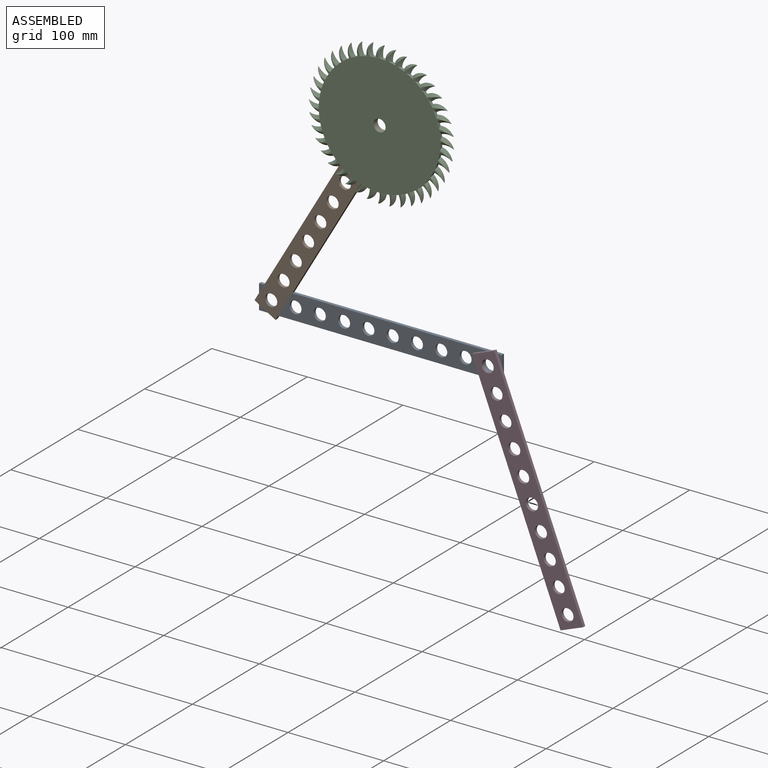
[diagram: assembled view]
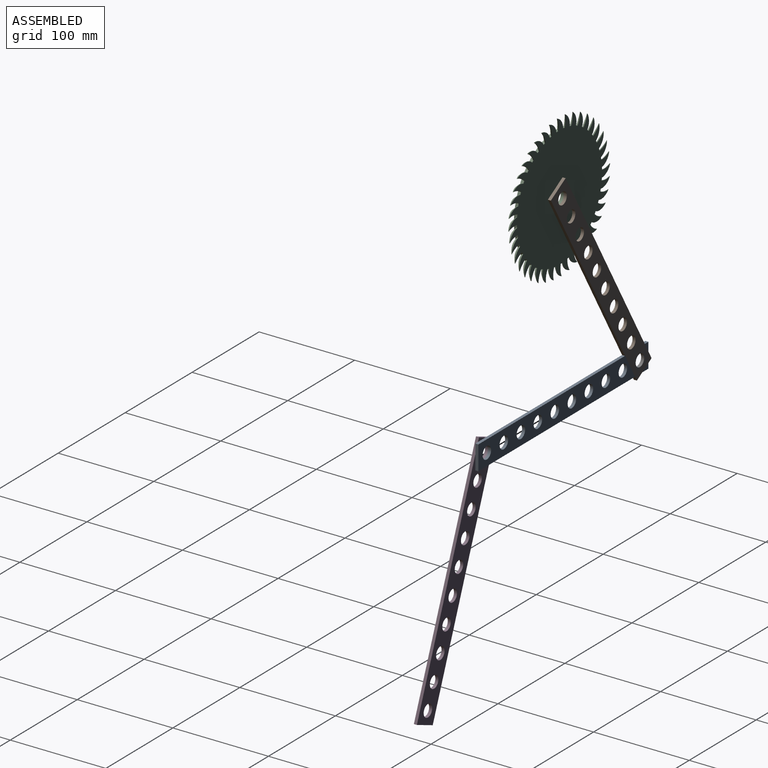
[diagram: assembled view, second angle]
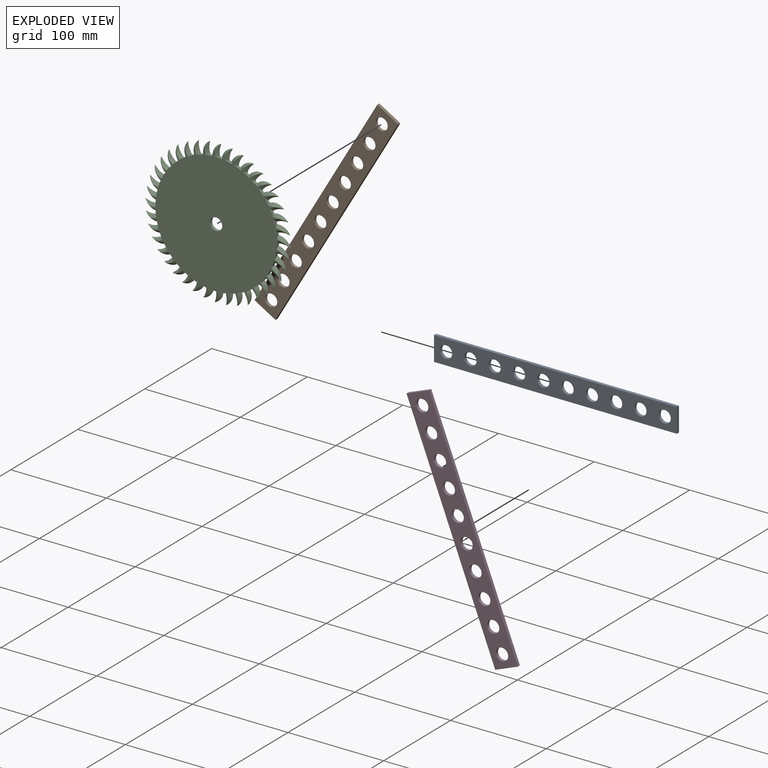
[diagram: exploded view]
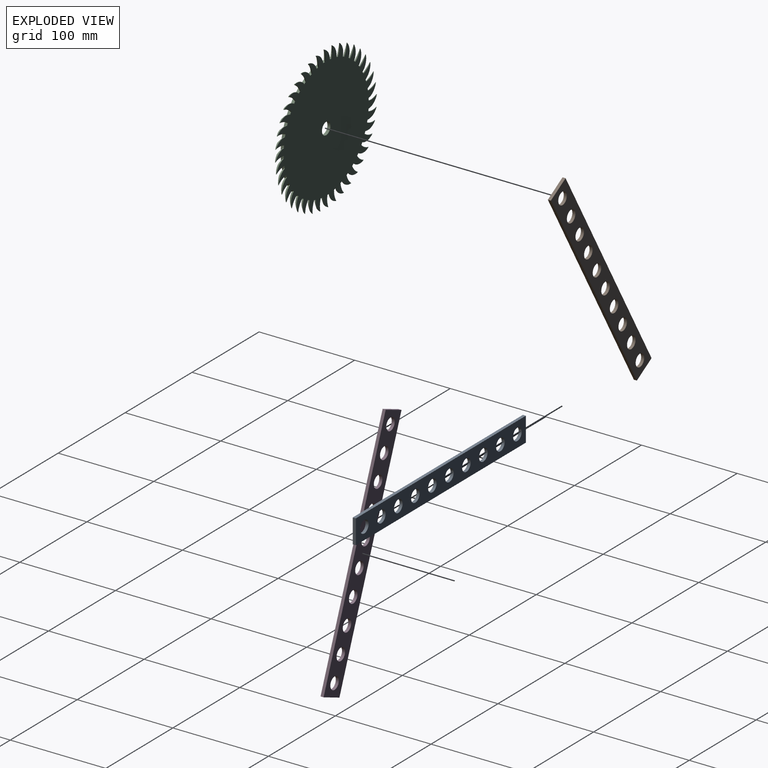
[diagram: exploded view, second angle]
ASSEMBLY  parts=4 mates=3
PART A: 16 faces, bbox 254x3.2x25.4 mm
  f0: plane 25.4x3.18mm, normal (-1,0,0), area 80.6mm2, adj f1,f3,f4,f5
  f1: plane 254x3.18mm, normal (0,0,-1), area 806.5mm2, adj f0,f2,f4,f5
  f2: plane 25.4x3.18mm, normal (1,0,0), area 80.6mm2, adj f1,f3,f4,f5
  f3: plane 254x3.18mm, normal (0,0,1), area 806.5mm2, adj f0,f2,f4,f5
  f4: plane 254x25.4mm, normal (0,-1,0), area 5184.8mm2, adj f0,f1,f2,f3,f6,f7,f8,f9
  f5: plane 254x25.4mm, normal (0,1,0), area 5184.8mm2, adj f0,f1,f2,f3,f6,f7,f8,f9
  f6: cylinder r=6.35mm len=12.7mm, axis (0,-1,0), area 126.7mm2, adj f4,f5
  f7: cylinder r=6.35mm len=12.7mm, axis (0,-1,0), area 126.7mm2, adj f4,f5
  f8: cylinder r=6.35mm len=12.7mm, axis (0,-1,0), area 126.7mm2, adj f4,f5
  f9: cylinder r=6.35mm len=12.7mm, axis (0,-1,0), area 126.7mm2, adj f4,f5
  f10: cylinder r=6.35mm len=12.7mm, axis (0,-1,0), area 126.7mm2, adj f4,f5
  f11: cylinder r=6.35mm len=12.7mm, axis (0,-1,0), area 126.7mm2, adj f4,f5
  f12: cylinder r=6.35mm len=12.7mm, axis (0,-1,0), area 126.7mm2, adj f4,f5
  f13: cylinder r=6.35mm len=12.7mm, axis (0,-1,0), area 126.7mm2, adj f4,f5
  f14: cylinder r=6.35mm len=12.7mm, axis (0,-1,0), area 126.7mm2, adj f4,f5
  f15: cylinder r=6.35mm len=12.7mm, axis (0,-1,0), area 126.7mm2, adj f4,f5
PART B: same geometry as A
PART C: 203 faces, bbox 154x3.2x154 mm
  f0: cylinder r=63.5mm len=7.21mm, axis (0,1,0), area 14.8mm2, adj f40,f41,f44,f46,f199,f201
  f1: cylinder r=63.5mm len=6.66mm, axis (0,1,0), area 14.8mm2, adj f40,f41,f195,f197,f200,f202
  f2: cylinder r=63.5mm len=5.95mm, axis (0,1,0), area 14.8mm2, adj f40,f41,f191,f193,f196,f198
  f3: cylinder r=63.5mm len=5.9mm, axis (0,1,0), area 14.8mm2, adj f40,f41,f187,f189,f192,f194
  f4: cylinder r=63.5mm len=6.62mm, axis (0,1,0), area 14.8mm2, adj f40,f41,f183,f185,f188,f190
  f5: cylinder r=63.5mm len=7.18mm, axis (0,1,0), area 14.8mm2, adj f40,f41,f179,f181,f184,f186
  f6: cylinder r=63.5mm len=7.57mm, axis (0,1,0), area 14.8mm2, adj f40,f41,f175,f177,f180,f182
  f7: cylinder r=63.5mm len=7.76mm, axis (0,1,0), area 14.8mm2, adj f40,f41,f171,f173,f176,f178
  f8: cylinder r=63.5mm len=7.77mm, axis (0,1,0), area 14.8mm2, adj f40,f41,f167,f169,f172,f174
  f9: cylinder r=63.5mm len=7.58mm, axis (0,1,0), area 14.8mm2, adj f40,f41,f163,f165,f168,f170
  f10: cylinder r=63.5mm len=7.21mm, axis (0,1,0), area 14.8mm2, adj f40,f41,f159,f161,f164,f166
  f11: cylinder r=63.5mm len=6.66mm, axis (0,1,0), area 14.8mm2, adj f40,f41,f155,f157,f160,f162
  f12: cylinder r=63.5mm len=5.95mm, axis (0,1,0), area 14.8mm2, adj f40,f41,f151,f153,f156,f158
  f13: cylinder r=63.5mm len=5.9mm, axis (0,1,0), area 14.8mm2, adj f40,f41,f147,f149,f152,f154
  f14: cylinder r=63.5mm len=6.62mm, axis (0,1,0), area 14.8mm2, adj f40,f41,f143,f145,f148,f150
  f15: cylinder r=63.5mm len=7.18mm, axis (0,1,0), area 14.8mm2, adj f40,f41,f139,f141,f144,f146
  f16: cylinder r=63.5mm len=7.57mm, axis (0,1,0), area 14.8mm2, adj f40,f41,f135,f137,f140,f142
  f17: cylinder r=63.5mm len=7.76mm, axis (0,1,0), area 14.8mm2, adj f40,f41,f131,f133,f136,f138
  f18: cylinder r=63.5mm len=7.77mm, axis (0,1,0), area 14.8mm2, adj f40,f41,f127,f129,f132,f134
  f19: cylinder r=63.5mm len=7.58mm, axis (0,1,0), area 14.8mm2, adj f40,f41,f123,f125,f128,f130
  f20: cylinder r=63.5mm len=7.21mm, axis (0,1,0), area 14.8mm2, adj f40,f41,f119,f121,f124,f126
  f21: cylinder r=63.5mm len=6.66mm, axis (0,1,0), area 14.8mm2, adj f40,f41,f115,f117,f120,f122
  f22: cylinder r=63.5mm len=5.95mm, axis (0,1,0), area 14.8mm2, adj f40,f41,f111,f113,f116,f118
  f23: cylinder r=63.5mm len=5.9mm, axis (0,1,0), area 14.8mm2, adj f40,f41,f107,f109,f112,f114
  f24: cylinder r=63.5mm len=6.62mm, axis (0,1,0), area 14.8mm2, adj f40,f41,f103,f105,f108,f110
  f25: cylinder r=63.5mm len=7.18mm, axis (0,1,0), area 14.8mm2, adj f40,f41,f99,f101,f104,f106
  f26: cylinder r=63.5mm len=7.57mm, axis (0,1,0), area 14.8mm2, adj f40,f41,f95,f97,f100,f102
  f27: cylinder r=63.5mm len=7.76mm, axis (0,1,0), area 14.8mm2, adj f40,f41,f91,f93,f96,f98
  f28: cylinder r=63.5mm len=7.77mm, axis (0,1,0), area 14.8mm2, adj f40,f41,f87,f89,f92,f94
  f29: cylinder r=63.5mm len=7.58mm, axis (0,1,0), area 14.8mm2, adj f40,f41,f83,f85,f88,f90
  f30: cylinder r=63.5mm len=7.21mm, axis (0,1,0), area 14.8mm2, adj f40,f41,f79,f81,f84,f86
  f31: cylinder r=63.5mm len=6.66mm, axis (0,1,0), area 14.8mm2, adj f40,f41,f75,f77,f80,f82
  f32: cylinder r=63.5mm len=5.95mm, axis (0,1,0), area 14.8mm2, adj f40,f41,f71,f73,f76,f78
  f33: cylinder r=63.5mm len=5.9mm, axis (0,1,0), area 14.8mm2, adj f40,f41,f67,f69,f72,f74
  f34: cylinder r=63.5mm len=6.62mm, axis (0,1,0), area 14.8mm2, adj f40,f41,f63,f65,f68,f70
  f35: cylinder r=63.5mm len=7.18mm, axis (0,1,0), area 14.8mm2, adj f40,f41,f59,f61,f64,f66
  f36: cylinder r=63.5mm len=7.57mm, axis (0,1,0), area 14.8mm2, adj f40,f41,f55,f57,f60,f62
  f37: cylinder r=63.5mm len=7.76mm, axis (0,1,0), area 14.8mm2, adj f40,f41,f51,f53,f56,f58
  f38: cylinder r=63.5mm len=7.77mm, axis (0,1,0), area 14.8mm2, adj f40,f41,f47,f49,f52,f54
  f39: cylinder r=63.5mm len=7.58mm, axis (0,1,0), area 14.8mm2, adj f40,f41,f43,f45,f48,f50
  f40: plane 138.28x138.28mm, normal (0,-1,0), area 12825.8mm2, adj f0,f1,f2,f3,f4,f5,f6,f7
  f41: plane 151.07x151.07mm, normal (0,1,0), area 14914.2mm2, adj f0,f1,f2,f3,f4,f5,f6,f7
  f42: cylinder r=6.35mm len=12.7mm, axis (0,-1,0), area 126.7mm2, adj f40,f41
  f43: cylinder r=13.61mm len=12.77mm, axis (0,1,0), area 10.3mm2, adj f39,f41,f44,f45,f46
  f44: cone r=19.53mm half-angle=45deg, axis (0,1,0), area 5.6mm2, adj f0,f41,f43,f46
  f45: cone r=11.07mm half-angle=45deg, axis (0,1,0), area 40.2mm2, adj f39,f40,f43,f46
  f46: cone r=16.99mm half-angle=45deg, axis (0,-1,0), area 39.3mm2, adj f0,f40,f43,f44,f45
  f47: cylinder r=13.61mm len=11.23mm, axis (0,1,0), area 10.3mm2, adj f38,f41,f48,f49,f50
  f48: cone r=19.53mm half-angle=45deg, axis (0,1,0), area 5.6mm2, adj f39,f41,f47,f50
  f49: cone r=11.07mm half-angle=45deg, axis (0,1,0), area 40.2mm2, adj f38,f40,f47,f50
  f50: cone r=16.99mm half-angle=45deg, axis (0,-1,0), area 39.3mm2, adj f39,f40,f47,f48,f49
  f51: cylinder r=13.61mm len=12.3mm, axis (0,1,0), area 10.3mm2, adj f37,f41,f52,f53,f54
  f52: cone r=19.53mm half-angle=45deg, axis (0,1,0), area 5.6mm2, adj f38,f41,f51,f54
  f53: cone r=11.07mm half-angle=45deg, axis (0,1,0), area 40.2mm2, adj f37,f40,f51,f54
  f54: cone r=16.99mm half-angle=45deg, axis (0,-1,0), area 39.3mm2, adj f38,f40,f51,f52,f53
  f55: cylinder r=13.61mm len=13.63mm, axis (0,1,0), area 10.3mm2, adj f36,f41,f56,f57,f58
  f56: cone r=19.53mm half-angle=45deg, axis (0,1,0), area 5.6mm2, adj f37,f41,f55,f58
  f57: cone r=11.07mm half-angle=45deg, axis (0,1,0), area 40.2mm2, adj f36,f40,f55,f58
  f58: cone r=16.99mm half-angle=45deg, axis (0,-1,0), area 39.3mm2, adj f37,f40,f55,f56,f57
  f59: cylinder r=13.61mm len=14.61mm, axis (0,1,0), area 10.3mm2, adj f35,f41,f60,f61,f62
  f60: cone r=19.53mm half-angle=45deg, axis (0,1,0), area 5.6mm2, adj f36,f41,f59,f62
  f61: cone r=11.07mm half-angle=45deg, axis (0,1,0), area 40.2mm2, adj f35,f40,f59,f62
  f62: cone r=16.99mm half-angle=45deg, axis (0,-1,0), area 39.3mm2, adj f36,f40,f59,f60,f61
  f63: cylinder r=13.61mm len=15.24mm, axis (0,1,0), area 10.3mm2, adj f34,f41,f64,f65,f66
  f64: cone r=19.53mm half-angle=45deg, axis (0,1,0), area 5.6mm2, adj f35,f41,f63,f66
  f65: cone r=11.07mm half-angle=45deg, axis (0,1,0), area 40.2mm2, adj f34,f40,f63,f66
  f66: cone r=16.99mm half-angle=45deg, axis (0,-1,0), area 39.3mm2, adj f35,f40,f63,f64,f65
  f67: cylinder r=13.61mm len=15.49mm, axis (0,1,0), area 10.3mm2, adj f33,f41,f68,f69,f70
  f68: cone r=19.53mm half-angle=45deg, axis (0,1,0), area 5.6mm2, adj f34,f41,f67,f70
  f69: cone r=11.07mm half-angle=45deg, axis (0,1,0), area 40.2mm2, adj f33,f40,f67,f70
  f70: cone r=16.99mm half-angle=45deg, axis (0,-1,0), area 39.3mm2, adj f34,f40,f67,f68,f69
  f71: cylinder r=13.61mm len=15.36mm, axis (0,1,0), area 10.3mm2, adj f32,f41,f72,f73,f74
  f72: cone r=19.53mm half-angle=45deg, axis (0,1,0), area 5.6mm2, adj f33,f41,f71,f74
  f73: cone r=11.07mm half-angle=45deg, axis (0,1,0), area 40.2mm2, adj f32,f40,f71,f74
  f74: cone r=16.99mm half-angle=45deg, axis (0,-1,0), area 39.3mm2, adj f33,f40,f71,f72,f73
  f75: cylinder r=13.61mm len=14.86mm, axis (0,1,0), area 10.3mm2, adj f31,f41,f76,f77,f78
  f76: cone r=19.53mm half-angle=45deg, axis (0,1,0), area 5.6mm2, adj f32,f41,f75,f78
  f77: cone r=11.07mm half-angle=45deg, axis (0,1,0), area 40.2mm2, adj f31,f40,f75,f78
  f78: cone r=16.99mm half-angle=45deg, axis (0,-1,0), area 39.3mm2, adj f32,f40,f75,f76,f77
  f79: cylinder r=13.61mm len=13.98mm, axis (0,1,0), area 10.3mm2, adj f30,f41,f80,f81,f82
  f80: cone r=19.53mm half-angle=45deg, axis (0,1,0), area 5.6mm2, adj f31,f41,f79,f82
  f81: cone r=11.07mm half-angle=45deg, axis (0,1,0), area 40.2mm2, adj f30,f40,f79,f82
  f82: cone r=16.99mm half-angle=45deg, axis (0,-1,0), area 39.3mm2, adj f31,f40,f79,f80,f81
  f83: cylinder r=13.61mm len=12.77mm, axis (0,1,0), area 10.3mm2, adj f29,f41,f84,f85,f86
  f84: cone r=19.53mm half-angle=45deg, axis (0,1,0), area 5.6mm2, adj f30,f41,f83,f86
  f85: cone r=11.07mm half-angle=45deg, axis (0,1,0), area 40.2mm2, adj f29,f40,f83,f86
  f86: cone r=16.99mm half-angle=45deg, axis (0,-1,0), area 39.3mm2, adj f30,f40,f83,f84,f85
  f87: cylinder r=13.61mm len=11.23mm, axis (0,1,0), area 10.3mm2, adj f28,f41,f88,f89,f90
  f88: cone r=19.53mm half-angle=45deg, axis (0,1,0), area 5.6mm2, adj f29,f41,f87,f90
  f89: cone r=11.07mm half-angle=45deg, axis (0,1,0), area 40.2mm2, adj f28,f40,f87,f90
  f90: cone r=16.99mm half-angle=45deg, axis (0,-1,0), area 39.3mm2, adj f29,f40,f87,f88,f89
  f91: cylinder r=13.61mm len=12.3mm, axis (0,1,0), area 10.3mm2, adj f27,f41,f92,f93,f94
  f92: cone r=19.53mm half-angle=45deg, axis (0,1,0), area 5.6mm2, adj f28,f41,f91,f94
  f93: cone r=11.07mm half-angle=45deg, axis (0,1,0), area 40.2mm2, adj f27,f40,f91,f94
  f94: cone r=16.99mm half-angle=45deg, axis (0,-1,0), area 39.3mm2, adj f28,f40,f91,f92,f93
  f95: cylinder r=13.61mm len=13.63mm, axis (0,1,0), area 10.3mm2, adj f26,f41,f96,f97,f98
  f96: cone r=19.53mm half-angle=45deg, axis (0,1,0), area 5.6mm2, adj f27,f41,f95,f98
  f97: cone r=11.07mm half-angle=45deg, axis (0,1,0), area 40.2mm2, adj f26,f40,f95,f98
  f98: cone r=16.99mm half-angle=45deg, axis (0,-1,0), area 39.3mm2, adj f27,f40,f95,f96,f97
  f99: cylinder r=13.61mm len=14.61mm, axis (0,1,0), area 10.3mm2, adj f25,f41,f100,f101,f102
  f100: cone r=19.53mm half-angle=45deg, axis (0,1,0), area 5.6mm2, adj f26,f41,f99,f102
  f101: cone r=11.07mm half-angle=45deg, axis (0,1,0), area 40.2mm2, adj f25,f40,f99,f102
  f102: cone r=16.99mm half-angle=45deg, axis (0,-1,0), area 39.3mm2, adj f26,f40,f99,f100,f101
  f103: cylinder r=13.61mm len=15.24mm, axis (0,1,0), area 10.3mm2, adj f24,f41,f104,f105,f106
  f104: cone r=19.53mm half-angle=45deg, axis (0,1,0), area 5.6mm2, adj f25,f41,f103,f106
  f105: cone r=11.07mm half-angle=45deg, axis (0,1,0), area 40.2mm2, adj f24,f40,f103,f106
  f106: cone r=16.99mm half-angle=45deg, axis (0,-1,0), area 39.3mm2, adj f25,f40,f103,f104,f105
  f107: cylinder r=13.61mm len=15.49mm, axis (0,1,0), area 10.3mm2, adj f23,f41,f108,f109,f110
  f108: cone r=19.53mm half-angle=45deg, axis (0,1,0), area 5.6mm2, adj f24,f41,f107,f110
  f109: cone r=11.07mm half-angle=45deg, axis (0,1,0), area 40.2mm2, adj f23,f40,f107,f110
  f110: cone r=16.99mm half-angle=45deg, axis (0,-1,0), area 39.3mm2, adj f24,f40,f107,f108,f109
  f111: cylinder r=13.61mm len=15.36mm, axis (0,1,0), area 10.3mm2, adj f22,f41,f112,f113,f114
  f112: cone r=19.53mm half-angle=45deg, axis (0,1,0), area 5.6mm2, adj f23,f41,f111,f114
  f113: cone r=11.07mm half-angle=45deg, axis (0,1,0), area 40.2mm2, adj f22,f40,f111,f114
  f114: cone r=16.99mm half-angle=45deg, axis (0,-1,0), area 39.3mm2, adj f23,f40,f111,f112,f113
  f115: cylinder r=13.61mm len=14.86mm, axis (0,1,0), area 10.3mm2, adj f21,f41,f116,f117,f118
  f116: cone r=19.53mm half-angle=45deg, axis (0,1,0), area 5.6mm2, adj f22,f41,f115,f118
  f117: cone r=11.07mm half-angle=45deg, axis (0,1,0), area 40.2mm2, adj f21,f40,f115,f118
  f118: cone r=16.99mm half-angle=45deg, axis (0,-1,0), area 39.3mm2, adj f22,f40,f115,f116,f117
  f119: cylinder r=13.61mm len=13.98mm, axis (0,1,0), area 10.3mm2, adj f20,f41,f120,f121,f122
  f120: cone r=19.53mm half-angle=45deg, axis (0,1,0), area 5.6mm2, adj f21,f41,f119,f122
  f121: cone r=11.07mm half-angle=45deg, axis (0,1,0), area 40.2mm2, adj f20,f40,f119,f122
  f122: cone r=16.99mm half-angle=45deg, axis (0,-1,0), area 39.3mm2, adj f21,f40,f119,f120,f121
  f123: cylinder r=13.61mm len=12.77mm, axis (0,1,0), area 10.3mm2, adj f19,f41,f124,f125,f126
  f124: cone r=19.53mm half-angle=45deg, axis (0,1,0), area 5.6mm2, adj f20,f41,f123,f126
  f125: cone r=11.07mm half-angle=45deg, axis (0,1,0), area 40.2mm2, adj f19,f40,f123,f126
  f126: cone r=16.99mm half-angle=45deg, axis (0,-1,0), area 39.3mm2, adj f20,f40,f123,f124,f125
  f127: cylinder r=13.61mm len=11.23mm, axis (0,1,0), area 10.3mm2, adj f18,f41,f128,f129,f130
  f128: cone r=19.53mm half-angle=45deg, axis (0,1,0), area 5.6mm2, adj f19,f41,f127,f130
  f129: cone r=11.07mm half-angle=45deg, axis (0,1,0), area 40.2mm2, adj f18,f40,f127,f130
  f130: cone r=16.99mm half-angle=45deg, axis (0,-1,0), area 39.3mm2, adj f19,f40,f127,f128,f129
  f131: cylinder r=13.61mm len=12.3mm, axis (0,1,0), area 10.3mm2, adj f17,f41,f132,f133,f134
  f132: cone r=19.53mm half-angle=45deg, axis (0,1,0), area 5.6mm2, adj f18,f41,f131,f134
  f133: cone r=11.07mm half-angle=45deg, axis (0,1,0), area 40.2mm2, adj f17,f40,f131,f134
  f134: cone r=16.99mm half-angle=45deg, axis (0,-1,0), area 39.3mm2, adj f18,f40,f131,f132,f133
  f135: cylinder r=13.61mm len=13.63mm, axis (0,1,0), area 10.3mm2, adj f16,f41,f136,f137,f138
  f136: cone r=19.53mm half-angle=45deg, axis (0,1,0), area 5.6mm2, adj f17,f41,f135,f138
  f137: cone r=11.07mm half-angle=45deg, axis (0,1,0), area 40.2mm2, adj f16,f40,f135,f138
  f138: cone r=16.99mm half-angle=45deg, axis (0,-1,0), area 39.3mm2, adj f17,f40,f135,f136,f137
  f139: cylinder r=13.61mm len=14.61mm, axis (0,1,0), area 10.3mm2, adj f15,f41,f140,f141,f142
  f140: cone r=19.53mm half-angle=45deg, axis (0,1,0), area 5.6mm2, adj f16,f41,f139,f142
  f141: cone r=11.07mm half-angle=45deg, axis (0,1,0), area 40.2mm2, adj f15,f40,f139,f142
  f142: cone r=16.99mm half-angle=45deg, axis (0,-1,0), area 39.3mm2, adj f16,f40,f139,f140,f141
  f143: cylinder r=13.61mm len=15.24mm, axis (0,1,0), area 10.3mm2, adj f14,f41,f144,f145,f146
  f144: cone r=19.53mm half-angle=45deg, axis (0,1,0), area 5.6mm2, adj f15,f41,f143,f146
  f145: cone r=11.07mm half-angle=45deg, axis (0,1,0), area 40.2mm2, adj f14,f40,f143,f146
  f146: cone r=16.99mm half-angle=45deg, axis (0,-1,0), area 39.3mm2, adj f15,f40,f143,f144,f145
  f147: cylinder r=13.61mm len=15.49mm, axis (0,1,0), area 10.3mm2, adj f13,f41,f148,f149,f150
  f148: cone r=19.53mm half-angle=45deg, axis (0,1,0), area 5.6mm2, adj f14,f41,f147,f150
  f149: cone r=11.07mm half-angle=45deg, axis (0,1,0), area 40.2mm2, adj f13,f40,f147,f150
  f150: cone r=16.99mm half-angle=45deg, axis (0,-1,0), area 39.3mm2, adj f14,f40,f147,f148,f149
  f151: cylinder r=13.61mm len=15.36mm, axis (0,1,0), area 10.3mm2, adj f12,f41,f152,f153,f154
  f152: cone r=19.53mm half-angle=45deg, axis (0,1,0), area 5.6mm2, adj f13,f41,f151,f154
  f153: cone r=11.07mm half-angle=45deg, axis (0,1,0), area 40.2mm2, adj f12,f40,f151,f154
  f154: cone r=16.99mm half-angle=45deg, axis (0,-1,0), area 39.3mm2, adj f13,f40,f151,f152,f153
  f155: cylinder r=13.61mm len=14.86mm, axis (0,1,0), area 10.3mm2, adj f11,f41,f156,f157,f158
  f156: cone r=19.53mm half-angle=45deg, axis (0,1,0), area 5.6mm2, adj f12,f41,f155,f158
  f157: cone r=11.07mm half-angle=45deg, axis (0,1,0), area 40.2mm2, adj f11,f40,f155,f158
  f158: cone r=16.99mm half-angle=45deg, axis (0,-1,0), area 39.3mm2, adj f12,f40,f155,f156,f157
  f159: cylinder r=13.61mm len=13.98mm, axis (0,1,0), area 10.3mm2, adj f10,f41,f160,f161,f162
  f160: cone r=19.53mm half-angle=45deg, axis (0,1,0), area 5.6mm2, adj f11,f41,f159,f162
  f161: cone r=11.07mm half-angle=45deg, axis (0,1,0), area 40.2mm2, adj f10,f40,f159,f162
  f162: cone r=16.99mm half-angle=45deg, axis (0,-1,0), area 39.3mm2, adj f11,f40,f159,f160,f161
  f163: cylinder r=13.61mm len=12.77mm, axis (0,1,0), area 10.3mm2, adj f9,f41,f164,f165,f166
  f164: cone r=19.53mm half-angle=45deg, axis (0,1,0), area 5.6mm2, adj f10,f41,f163,f166
  f165: cone r=11.07mm half-angle=45deg, axis (0,1,0), area 40.2mm2, adj f9,f40,f163,f166
  f166: cone r=16.99mm half-angle=45deg, axis (0,-1,0), area 39.3mm2, adj f10,f40,f163,f164,f165
  f167: cylinder r=13.61mm len=11.23mm, axis (0,1,0), area 10.3mm2, adj f8,f41,f168,f169,f170
  f168: cone r=19.53mm half-angle=45deg, axis (0,1,0), area 5.6mm2, adj f9,f41,f167,f170
  f169: cone r=11.07mm half-angle=45deg, axis (0,1,0), area 40.2mm2, adj f8,f40,f167,f170
  f170: cone r=16.99mm half-angle=45deg, axis (0,-1,0), area 39.3mm2, adj f9,f40,f167,f168,f169
  f171: cylinder r=13.61mm len=12.3mm, axis (0,1,0), area 10.3mm2, adj f7,f41,f172,f173,f174
  f172: cone r=19.53mm half-angle=45deg, axis (0,1,0), area 5.6mm2, adj f8,f41,f171,f174
  f173: cone r=11.07mm half-angle=45deg, axis (0,1,0), area 40.2mm2, adj f7,f40,f171,f174
  f174: cone r=16.99mm half-angle=45deg, axis (0,-1,0), area 39.3mm2, adj f8,f40,f171,f172,f173
  f175: cylinder r=13.61mm len=13.63mm, axis (0,1,0), area 10.3mm2, adj f6,f41,f176,f177,f178
  f176: cone r=19.53mm half-angle=45deg, axis (0,1,0), area 5.6mm2, adj f7,f41,f175,f178
  f177: cone r=11.07mm half-angle=45deg, axis (0,1,0), area 40.2mm2, adj f6,f40,f175,f178
  f178: cone r=16.99mm half-angle=45deg, axis (0,-1,0), area 39.3mm2, adj f7,f40,f175,f176,f177
  f179: cylinder r=13.61mm len=14.61mm, axis (0,1,0), area 10.3mm2, adj f5,f41,f180,f181,f182
  f180: cone r=19.53mm half-angle=45deg, axis (0,1,0), area 5.6mm2, adj f6,f41,f179,f182
  f181: cone r=11.07mm half-angle=45deg, axis (0,1,0), area 40.2mm2, adj f5,f40,f179,f182
  f182: cone r=16.99mm half-angle=45deg, axis (0,-1,0), area 39.3mm2, adj f6,f40,f179,f180,f181
  f183: cylinder r=13.61mm len=15.24mm, axis (0,1,0), area 10.3mm2, adj f4,f41,f184,f185,f186
  f184: cone r=19.53mm half-angle=45deg, axis (0,1,0), area 5.6mm2, adj f5,f41,f183,f186
  f185: cone r=11.07mm half-angle=45deg, axis (0,1,0), area 40.2mm2, adj f4,f40,f183,f186
  f186: cone r=16.99mm half-angle=45deg, axis (0,-1,0), area 39.3mm2, adj f5,f40,f183,f184,f185
  f187: cylinder r=13.61mm len=15.49mm, axis (0,1,0), area 10.3mm2, adj f3,f41,f188,f189,f190
  f188: cone r=19.53mm half-angle=45deg, axis (0,1,0), area 5.6mm2, adj f4,f41,f187,f190
  f189: cone r=11.07mm half-angle=45deg, axis (0,1,0), area 40.2mm2, adj f3,f40,f187,f190
  f190: cone r=16.99mm half-angle=45deg, axis (0,-1,0), area 39.3mm2, adj f4,f40,f187,f188,f189
  f191: cylinder r=13.61mm len=15.36mm, axis (0,1,0), area 10.3mm2, adj f2,f41,f192,f193,f194
  f192: cone r=19.53mm half-angle=45deg, axis (0,1,0), area 5.6mm2, adj f3,f41,f191,f194
  f193: cone r=11.07mm half-angle=45deg, axis (0,1,0), area 40.2mm2, adj f2,f40,f191,f194
  f194: cone r=16.99mm half-angle=45deg, axis (0,-1,0), area 39.3mm2, adj f3,f40,f191,f192,f193
  f195: cylinder r=13.61mm len=14.86mm, axis (0,1,0), area 10.3mm2, adj f1,f41,f196,f197,f198
  f196: cone r=19.53mm half-angle=45deg, axis (0,1,0), area 5.6mm2, adj f2,f41,f195,f198
  f197: cone r=11.07mm half-angle=45deg, axis (0,1,0), area 40.2mm2, adj f1,f40,f195,f198
  f198: cone r=16.99mm half-angle=45deg, axis (0,-1,0), area 39.3mm2, adj f2,f40,f195,f196,f197
  f199: cylinder r=13.61mm len=13.98mm, axis (0,1,0), area 10.3mm2, adj f0,f41,f200,f201,f202
  f200: cone r=19.53mm half-angle=45deg, axis (0,1,0), area 5.6mm2, adj f1,f41,f199,f202
  f201: cone r=11.07mm half-angle=45deg, axis (0,1,0), area 40.2mm2, adj f0,f40,f199,f202
  f202: cone r=16.99mm half-angle=45deg, axis (0,-1,0), area 39.3mm2, adj f1,f40,f199,f200,f201
PART D: same geometry as A
PLACE A t=(-33.75,93.71,318.53)mm fixed
PLACE B rot(axis=(-0.87,0,-0.5),180deg) t=(-38.42,90.54,326.69)mm
PLACE C rot(axis=(0,-1,0),19.4deg) t=(94.51,90.54,528.47)mm
PLACE D rot(axis=(-0.56,0,-0.83),180deg) t=(283.86,87.36,101.96)mm
MATE revolute D.f15 <-> A.f15  axis (0,1,0) through (207.55,90.54,331.23)mm
MATE revolute C.f42 <-> B.f15  axis (0,1,0) through (94.51,90.54,528.47)mm
MATE revolute A.f6 <-> B.f6  axis (0,-1,0) through (-21.05,90.54,331.23)mm
